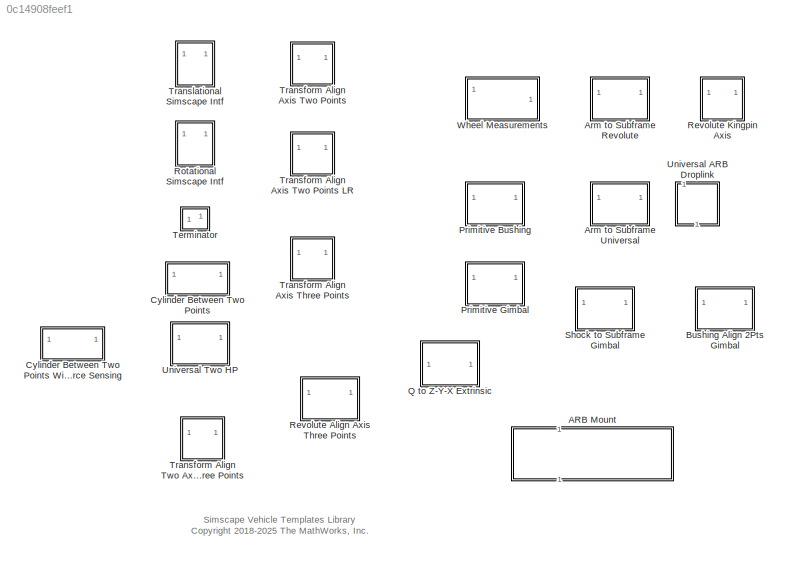
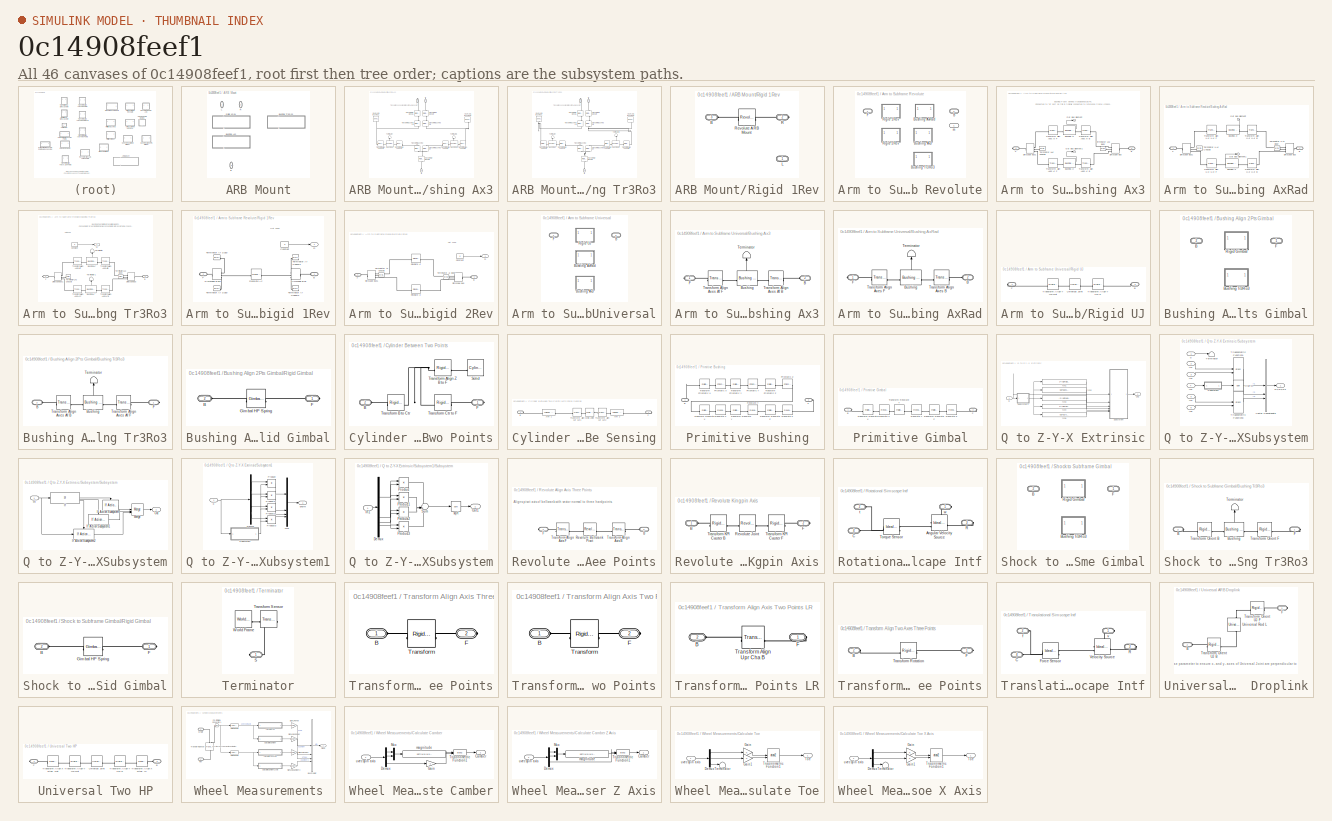
[diagram: thumbnail index - all 46 canvases of the model, root first then tree order]
MODEL slx_0c14908feef1
KIND library
CONFIG AbsTol = auto
CONFIG EnableMultiTasking = off
CONFIG FixedStep = auto
CONFIG MaxStep = auto
CONFIG MinStep = auto
CONFIG RelTol = 1e-3
CONFIG SampleTimeConstraint = Unconstrained
CONFIG SolverName = VariableStepAuto
CONFIG StartTime = 0.0
CONFIG StopTime = 10.0
BLOCK [SubSystem] ARB Mount
  AttributesFormatString = %<LabelModeActiveChoice>
  LabelModeActiveChoice = Rigid_1Rev
  NameLocation = left
  Variant = on
  VariantControl = Choice
  VariantControlMode = label
BLOCK [PMIOPort] ARB Mount/B
  NameLocation = right
  Port = 3
  Side = Left
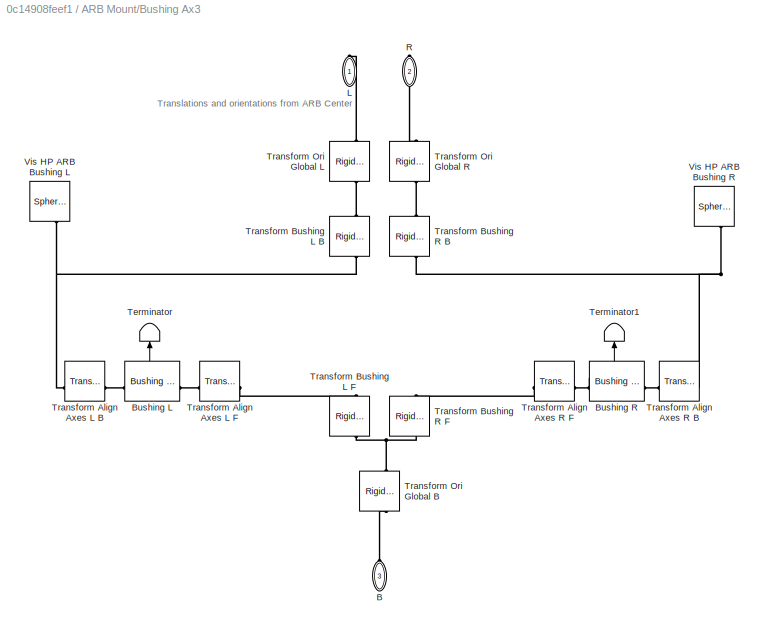
BLOCK [SubSystem] ARB Mount/Bushing Ax3
  NameLocation = right
  VariantControl = Bushing_Ax3
BLOCK [PMIOPort] ARB Mount/Bushing Ax3/B
  NameLocation = right
  Port = 3
  Side = Left
BLOCK [Reference] ARB Mount/Bushing Ax3/Bushing L  REF=linkage_bushing_6DOF_lib/Bushing
Tra 3
  SourceBlock = linkage_bushing_6DOF_lib/Bushing\nTra 3
  SourceType = Bushing with Radial and Axial Compliance
BLOCK [Reference] ARB Mount/Bushing Ax3/Bushing R  REF=linkage_bushing_6DOF_lib/Bushing
Tra 3
  SourceBlock = linkage_bushing_6DOF_lib/Bushing\nTra 3
  SourceType = Bushing with Radial and Axial Compliance
BLOCK [PMIOPort] ARB Mount/Bushing Ax3/L
  NameLocation = left
  Side = Right
BLOCK [PMIOPort] ARB Mount/Bushing Ax3/R
  NameLocation = right
  Port = 2
  Side = Right
BLOCK [Terminator] ARB Mount/Bushing Ax3/Terminator
  NameLocation = right
BLOCK [Terminator] ARB Mount/Bushing Ax3/Terminator1
  NameLocation = right
BLOCK [Reference] ARB Mount/Bushing Ax3/Transform Align Axes L B  REF=$bdroot/Transform
Align Two Axes Three Points
  SourceBlock = $bdroot/Transform\nAlign Two Axes Three Points
  SourceType = Transform Align Two Axes Three Points
BLOCK [Reference] ARB Mount/Bushing Ax3/Transform Align Axes L F  REF=$bdroot/Transform
Align Two Axes Three Points
  SourceBlock = $bdroot/Transform\nAlign Two Axes Three Points
  SourceType = Transform Align Two Axes Three Points
BLOCK [Reference] ARB Mount/Bushing Ax3/Transform Align Axes R B  REF=$bdroot/Transform
Align Two Axes Three Points
  SourceBlock = $bdroot/Transform\nAlign Two Axes Three Points
  SourceType = Transform Align Two Axes Three Points
BLOCK [Reference] ARB Mount/Bushing Ax3/Transform Align Axes R F  REF=$bdroot/Transform
Align Two Axes Three Points
  SourceBlock = $bdroot/Transform\nAlign Two Axes Three Points
  SourceType = Transform Align Two Axes Three Points
BLOCK [Reference] ARB Mount/Bushing Ax3/Transform Bushing L B  REF=sm_lib/Frames and
Transforms/Rigid
Transform
  NameLocation = left
  SourceBlock = sm_lib/Frames and\nTransforms/Rigid\nTransform
  SourceType = Rigid\nTransform
BLOCK [Reference] ARB Mount/Bushing Ax3/Transform Bushing L F  REF=sm_lib/Frames and
Transforms/Rigid
Transform
  NameLocation = left
  SourceBlock = sm_lib/Frames and\nTransforms/Rigid\nTransform
  SourceType = Rigid\nTransform
BLOCK [Reference] ARB Mount/Bushing Ax3/Transform Bushing R B  REF=sm_lib/Frames and
Transforms/Rigid
Transform
  NameLocation = right
  SourceBlock = sm_lib/Frames and\nTransforms/Rigid\nTransform
  SourceType = Rigid\nTransform
BLOCK [Reference] ARB Mount/Bushing Ax3/Transform Bushing R F  REF=sm_lib/Frames and
Transforms/Rigid
Transform
  NameLocation = right
  SourceBlock = sm_lib/Frames and\nTransforms/Rigid\nTransform
  SourceType = Rigid\nTransform
BLOCK [Reference] ARB Mount/Bushing Ax3/Transform Ori Global B  REF=sm_lib/Frames and
Transforms/Rigid
Transform
  SourceBlock = sm_lib/Frames and\nTransforms/Rigid\nTransform
  SourceType = Rigid\nTransform
BLOCK [Reference] ARB Mount/Bushing Ax3/Transform Ori Global L  REF=sm_lib/Frames and
Transforms/Rigid
Transform
  NameLocation = left
  SourceBlock = sm_lib/Frames and\nTransforms/Rigid\nTransform
  SourceType = Rigid\nTransform
BLOCK [Reference] ARB Mount/Bushing Ax3/Transform Ori Global R  REF=sm_lib/Frames and
Transforms/Rigid
Transform
  NameLocation = right
  SourceBlock = sm_lib/Frames and\nTransforms/Rigid\nTransform
  SourceType = Rigid\nTransform
BLOCK [Reference] ARB Mount/Bushing Ax3/Vis HP ARB Bushing L  REF=sm_lib/Body Elements/Spherical Solid
  NameLocation = right
  SourceBlock = sm_lib/Body Elements/Spherical Solid
  SourceType = Spherical Solid
BLOCK [Reference] ARB Mount/Bushing Ax3/Vis HP ARB Bushing R  REF=sm_lib/Body Elements/Spherical Solid
  NameLocation = left
  SourceBlock = sm_lib/Body Elements/Spherical Solid
  SourceType = Spherical Solid
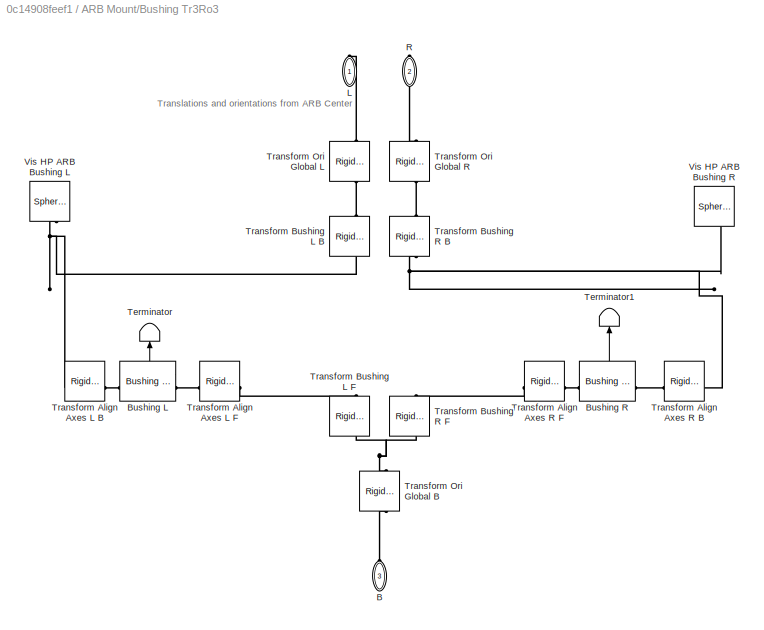
BLOCK [SubSystem] ARB Mount/Bushing Tr3Ro3
  NameLocation = right
  VariantControl = Bushing_Tr3Ro3
BLOCK [PMIOPort] ARB Mount/Bushing Tr3Ro3/B
  NameLocation = right
  Port = 3
  Side = Left
BLOCK [Reference] ARB Mount/Bushing Tr3Ro3/Bushing L  REF=linkage_bushing_6DOF_lib/Bushing
Tra 3 Rot 3
  SourceBlock = linkage_bushing_6DOF_lib/Bushing\nTra 3 Rot 3
  SourceType = Bushing with Axial  and Torsional Compliance
BLOCK [Reference] ARB Mount/Bushing Tr3Ro3/Bushing R  REF=linkage_bushing_6DOF_lib/Bushing
Tra 3 Rot 3
  SourceBlock = linkage_bushing_6DOF_lib/Bushing\nTra 3 Rot 3
  SourceType = Bushing with Axial  and Torsional Compliance
BLOCK [PMIOPort] ARB Mount/Bushing Tr3Ro3/L
  NameLocation = left
  Side = Right
BLOCK [PMIOPort] ARB Mount/Bushing Tr3Ro3/R
  NameLocation = right
  Port = 2
  Side = Right
BLOCK [Terminator] ARB Mount/Bushing Tr3Ro3/Terminator
  NameLocation = right
BLOCK [Terminator] ARB Mount/Bushing Tr3Ro3/Terminator1
  NameLocation = right
BLOCK [Reference] ARB Mount/Bushing Tr3Ro3/Transform Align Axes L B  REF=sm_lib/Frames and
Transforms/Rigid
Transform
  NameLocation = top
  SourceBlock = sm_lib/Frames and\nTransforms/Rigid\nTransform
  SourceType = Rigid\nTransform
BLOCK [Reference] ARB Mount/Bushing Tr3Ro3/Transform Align Axes L F  REF=sm_lib/Frames and
Transforms/Rigid
Transform
  NameLocation = top
  SourceBlock = sm_lib/Frames and\nTransforms/Rigid\nTransform
  SourceType = Rigid\nTransform
BLOCK [Reference] ARB Mount/Bushing Tr3Ro3/Transform Align Axes R B  REF=sm_lib/Frames and
Transforms/Rigid
Transform
  NameLocation = top
  SourceBlock = sm_lib/Frames and\nTransforms/Rigid\nTransform
  SourceType = Rigid\nTransform
BLOCK [Reference] ARB Mount/Bushing Tr3Ro3/Transform Align Axes R F  REF=sm_lib/Frames and
Transforms/Rigid
Transform
  NameLocation = top
  SourceBlock = sm_lib/Frames and\nTransforms/Rigid\nTransform
  SourceType = Rigid\nTransform
BLOCK [Reference] ARB Mount/Bushing Tr3Ro3/Transform Bushing L B  REF=sm_lib/Frames and
Transforms/Rigid
Transform
  NameLocation = left
  SourceBlock = sm_lib/Frames and\nTransforms/Rigid\nTransform
  SourceType = Rigid\nTransform
BLOCK [Reference] ARB Mount/Bushing Tr3Ro3/Transform Bushing L F  REF=sm_lib/Frames and
Transforms/Rigid
Transform
  NameLocation = left
  SourceBlock = sm_lib/Frames and\nTransforms/Rigid\nTransform
  SourceType = Rigid\nTransform
BLOCK [Reference] ARB Mount/Bushing Tr3Ro3/Transform Bushing R B  REF=sm_lib/Frames and
Transforms/Rigid
Transform
  NameLocation = right
  SourceBlock = sm_lib/Frames and\nTransforms/Rigid\nTransform
  SourceType = Rigid\nTransform
BLOCK [Reference] ARB Mount/Bushing Tr3Ro3/Transform Bushing R F  REF=sm_lib/Frames and
Transforms/Rigid
Transform
  NameLocation = right
  SourceBlock = sm_lib/Frames and\nTransforms/Rigid\nTransform
  SourceType = Rigid\nTransform
BLOCK [Reference] ARB Mount/Bushing Tr3Ro3/Transform Ori Global B  REF=sm_lib/Frames and
Transforms/Rigid
Transform
  SourceBlock = sm_lib/Frames and\nTransforms/Rigid\nTransform
  SourceType = Rigid\nTransform
BLOCK [Reference] ARB Mount/Bushing Tr3Ro3/Transform Ori Global L  REF=sm_lib/Frames and
Transforms/Rigid
Transform
  NameLocation = left
  SourceBlock = sm_lib/Frames and\nTransforms/Rigid\nTransform
  SourceType = Rigid\nTransform
BLOCK [Reference] ARB Mount/Bushing Tr3Ro3/Transform Ori Global R  REF=sm_lib/Frames and
Transforms/Rigid
Transform
  NameLocation = right
  SourceBlock = sm_lib/Frames and\nTransforms/Rigid\nTransform
  SourceType = Rigid\nTransform
BLOCK [Reference] ARB Mount/Bushing Tr3Ro3/Vis HP ARB Bushing L  REF=sm_lib/Body Elements/Spherical Solid
  NameLocation = right
  SourceBlock = sm_lib/Body Elements/Spherical Solid
  SourceType = Spherical Solid
BLOCK [Reference] ARB Mount/Bushing Tr3Ro3/Vis HP ARB Bushing R  REF=sm_lib/Body Elements/Spherical Solid
  NameLocation = left
  SourceBlock = sm_lib/Body Elements/Spherical Solid
  SourceType = Spherical Solid
BLOCK [PMIOPort] ARB Mount/L
  NameLocation = right
  Side = Right
BLOCK [PMIOPort] ARB Mount/R
  NameLocation = right
  Port = 2
  Side = Right
BLOCK [SubSystem] ARB Mount/Rigid 1Rev
  NameLocation = right
  VariantControl = Rigid_1Rev
BLOCK [PMIOPort] ARB Mount/Rigid 1Rev/B
  Port = 3
  Side = Left
BLOCK [PMIOPort] ARB Mount/Rigid 1Rev/L
  Side = Right
BLOCK [PMIOPort] ARB Mount/Rigid 1Rev/R
  Port = 2
  Side = Right
BLOCK [Reference] ARB Mount/Rigid 1Rev/Revolute ARB Mount  REF=sm_lib/Joints/Revolute Joint
  SourceBlock = sm_lib/Joints/Revolute Joint
  SourceType = Revolute Joint
BLOCK [SubSystem] Arm to Subframe Revolute
  AttributesFormatString = %<ActiveVariant>
  Variant = on
  VariantActivationTime = runtime
  VariantControl = Variant1
BLOCK [PMIOPort] Arm to Subframe Revolute/ B
  Port = 2
  Side = Left
BLOCK [SubSystem] Arm to Subframe Revolute/Bushing Ax3
  VariantControl = Bushing_Ax3
BLOCK [PMIOPort] Arm to Subframe Revolute/Bushing Ax3/ B
  Port = 2
  Side = Left
BLOCK [Reference] Arm to Subframe Revolute/Bushing Ax3/Bushing Af  REF=linkage_bushing_6DOF_lib/Bushing
Tra 3
  SourceBlock = linkage_bushing_6DOF_lib/Bushing\nTra 3
  SourceType = Bushing with Radial and Axial Compliance
BLOCK [Reference] Arm to Subframe Revolute/Bushing Ax3/Bushing Ar  REF=linkage_bushing_6DOF_lib/Bushing
Tra 3
  SourceBlock = linkage_bushing_6DOF_lib/Bushing\nTra 3
  SourceType = Bushing with Radial and Axial Compliance
BLOCK [PMIOPort] Arm to Subframe Revolute/Bushing Ax3/F
  Side = Right
BLOCK [Outport] Arm to Subframe Revolute/Bushing Ax3/Out Bus Element
BLOCK [Outport] Arm to Subframe Revolute/Bushing Ax3/Out Bus Element1
BLOCK [SimscapeBus] Arm to Subframe Revolute/Bushing Ax3/Simscape Bus
  HierarchyStrings = Af;Ac;Ar
BLOCK [SimscapeBus] Arm to Subframe Revolute/Bushing Ax3/Simscape Bus1
  HierarchyStrings = Af;Ac;Ar
BLOCK [Reference] Arm to Subframe Revolute/Bushing Ax3/Terminator UAc Body  REF=$bdroot/Terminator
  SourceBlock = $bdroot/Terminator
  SourceType = SubSystem
BLOCK [Reference] Arm to Subframe Revolute/Bushing Ax3/Terminator UAc Chassis  REF=$bdroot/Terminator
  SourceBlock = $bdroot/Terminator
  SourceType = SubSystem
BLOCK [Reference] Arm to Subframe Revolute/Bushing Ax3/Transform Align Axes Af B  REF=$bdroot/Transform
Align Two Axes Three Points
  SourceBlock = $bdroot/Transform\nAlign Two Axes Three Points
  SourceType = Transform Align Two Axes Three Points
BLOCK [Reference] Arm to Subframe Revolute/Bushing Ax3/Transform Align Axes Af F  REF=$bdroot/Transform
Align Two Axes Three Points
  SourceBlock = $bdroot/Transform\nAlign Two Axes Three Points
  SourceType = Transform Align Two Axes Three Points
BLOCK [Reference] Arm to Subframe Revolute/Bushing Ax3/Transform Align Axes Ar B  REF=$bdroot/Transform
Align Two Axes Three Points
  SourceBlock = $bdroot/Transform\nAlign Two Axes Three Points
  SourceType = Transform Align Two Axes Three Points
BLOCK [Reference] Arm to Subframe Revolute/Bushing Ax3/Transform Align Axes Ar F  REF=$bdroot/Transform
Align Two Axes Three Points
  SourceBlock = $bdroot/Transform\nAlign Two Axes Three Points
  SourceType = Transform Align Two Axes Three Points
BLOCK [SubSystem] Arm to Subframe Revolute/Bushing AxRad
  VariantControl = Bushing_AxRad
BLOCK [PMIOPort] Arm to Subframe Revolute/Bushing AxRad/ B
  Port = 2
  Side = Left
BLOCK [Reference] Arm to Subframe Revolute/Bushing AxRad/Bushing Af  REF=linkage_bushing_6DOF_lib/Bushing
Radial Axial
  AttributesFormatString = SPR: %<popup_force_law_spr_rad>\nDAM: %<popup_force_law_dam_rad>
  SourceBlock = linkage_bushing_6DOF_lib/Bushing\nRadial Axial
  SourceType = Bushing with Radial and Axial Compliance
BLOCK [Reference] Arm to Subframe Revolute/Bushing AxRad/Bushing Ar  REF=linkage_bushing_6DOF_lib/Bushing
Radial Axial
  SourceBlock = linkage_bushing_6DOF_lib/Bushing\nRadial Axial
  SourceType = Bushing with Radial and Axial Compliance
BLOCK [PMIOPort] Arm to Subframe Revolute/Bushing AxRad/F
  Side = Right
BLOCK [Outport] Arm to Subframe Revolute/Bushing AxRad/Out Bus Element
BLOCK [Outport] Arm to Subframe Revolute/Bushing AxRad/Out Bus Element1
BLOCK [SimscapeBus] Arm to Subframe Revolute/Bushing AxRad/Simscape Bus
  HierarchyStrings = Af;Ac;Ar
BLOCK [SimscapeBus] Arm to Subframe Revolute/Bushing AxRad/Simscape Bus1
  HierarchyStrings = Af;Ac;Ar
BLOCK [Reference] Arm to Subframe Revolute/Bushing AxRad/Terminator UAc Body  REF=$bdroot/Terminator
  SourceBlock = $bdroot/Terminator
  SourceType = SubSystem
BLOCK [Reference] Arm to Subframe Revolute/Bushing AxRad/Terminator UAc Chassis  REF=$bdroot/Terminator
  SourceBlock = $bdroot/Terminator
  SourceType = SubSystem
BLOCK [Reference] Arm to Subframe Revolute/Bushing AxRad/Transform Align UAf UAr B  REF=$bdroot/Transform
Align Axis Two Points
  SourceBlock = $bdroot/Transform\nAlign Axis Two Points
  SourceType = Transform Align Axis Two Points
BLOCK [Reference] Arm to Subframe Revolute/Bushing AxRad/Transform Align UAf UAr F  REF=$bdroot/Transform
Align Axis Two Points
  SourceBlock = $bdroot/Transform\nAlign Axis Two Points
  SourceType = Transform Align Axis Two Points
BLOCK [Reference] Arm to Subframe Revolute/Bushing AxRad/Transform Align UAr UAf B  REF=$bdroot/Transform
Align Axis Two Points
  SourceBlock = $bdroot/Transform\nAlign Axis Two Points
  SourceType = Transform Align Axis Two Points
BLOCK [Reference] Arm to Subframe Revolute/Bushing AxRad/Transform Align UAr UAf F  REF=$bdroot/Transform
Align Axis Two Points
  SourceBlock = $bdroot/Transform\nAlign Axis Two Points
  SourceType = Transform Align Axis Two Points
BLOCK [SubSystem] Arm to Subframe Revolute/Bushing Tr3Ro3
  VariantControl = Bushing_Tr3Ro3
BLOCK [PMIOPort] Arm to Subframe Revolute/Bushing Tr3Ro3/ B
  Port = 2
  Side = Left
BLOCK [Reference] Arm to Subframe Revolute/Bushing Tr3Ro3/Bushing Af  REF=linkage_bushing_6DOF_lib/Bushing
Tra 3 Rot 3
  SourceBlock = linkage_bushing_6DOF_lib/Bushing\nTra 3 Rot 3
  SourceType = Bushing with Axial  and Torsional Compliance
BLOCK [Reference] Arm to Subframe Revolute/Bushing Tr3Ro3/Bushing Ar  REF=linkage_bushing_6DOF_lib/Bushing
Tra 3 Rot 3
  SourceBlock = linkage_bushing_6DOF_lib/Bushing\nTra 3 Rot 3
  SourceType = Bushing with Axial  and Torsional Compliance
BLOCK [Constant] Arm to Subframe Revolute/Bushing Tr3Ro3/Constant
  Value = 0
BLOCK [PMIOPort] Arm to Subframe Revolute/Bushing Tr3Ro3/F
  Side = Right
BLOCK [SimscapeBus] Arm to Subframe Revolute/Bushing Tr3Ro3/Simscape Bus
  HierarchyStrings = Af;Ac;Ar
BLOCK [SimscapeBus] Arm to Subframe Revolute/Bushing Tr3Ro3/Simscape Bus1
  HierarchyStrings = Af;Ac;Ar
BLOCK [Terminator] Arm to Subframe Revolute/Bushing Tr3Ro3/Terminator
  NameLocation = right
BLOCK [Reference] Arm to Subframe Revolute/Bushing Tr3Ro3/Terminator UAc Body  REF=$bdroot/Terminator
  SourceBlock = $bdroot/Terminator
  SourceType = SubSystem
BLOCK [Reference] Arm to Subframe Revolute/Bushing Tr3Ro3/Terminator UAc Chassis  REF=$bdroot/Terminator
  SourceBlock = $bdroot/Terminator
  SourceType = SubSystem
BLOCK [Terminator] Arm to Subframe Revolute/Bushing Tr3Ro3/Terminator1
  NameLocation = right
BLOCK [Reference] Arm to Subframe Revolute/Bushing Tr3Ro3/Transform Align Axes Af B  REF=$bdroot/Transform
Align Two Axes Three Points
  SourceBlock = $bdroot/Transform\nAlign Two Axes Three Points
  SourceType = Transform Align Two Axes Three Points
BLOCK [Reference] Arm to Subframe Revolute/Bushing Tr3Ro3/Transform Align Axes Af F  REF=$bdroot/Transform
Align Two Axes Three Points
  SourceBlock = $bdroot/Transform\nAlign Two Axes Three Points
  SourceType = Transform Align Two Axes Three Points
BLOCK [Reference] Arm to Subframe Revolute/Bushing Tr3Ro3/Transform Align Axes Ar B  REF=$bdroot/Transform
Align Two Axes Three Points
  SourceBlock = $bdroot/Transform\nAlign Two Axes Three Points
  SourceType = Transform Align Two Axes Three Points
BLOCK [Reference] Arm to Subframe Revolute/Bushing Tr3Ro3/Transform Align Axes Ar F  REF=$bdroot/Transform
Align Two Axes Three Points
  SourceBlock = $bdroot/Transform\nAlign Two Axes Three Points
  SourceType = Transform Align Two Axes Three Points
BLOCK [Outport] Arm to Subframe Revolute/Bushing Tr3Ro3/m
BLOCK [PMIOPort] Arm to Subframe Revolute/F
  Side = Right
BLOCK [SubSystem] Arm to Subframe Revolute/Rigid 1Rev
  VariantControl = Rigid_1Rev
BLOCK [PMIOPort] Arm to Subframe Revolute/Rigid 1Rev/ B
  Side = Left
BLOCK [Constant] Arm to Subframe Revolute/Rigid 1Rev/Constant
  Value = 0
BLOCK [PMIOPort] Arm to Subframe Revolute/Rigid 1Rev/F
  Port = 2
  Side = Right
BLOCK [Reference] Arm to Subframe Revolute/Rigid 1Rev/Revolute Ac  REF=sm_lib/Joints/Revolute Joint
  SourceBlock = sm_lib/Joints/Revolute Joint
  SourceType = Revolute Joint
BLOCK [SimscapeBus] Arm to Subframe Revolute/Rigid 1Rev/Simscape Bus
  HierarchyStrings = Af;Ac;Ar
BLOCK [SimscapeBus] Arm to Subframe Revolute/Rigid 1Rev/Simscape Bus1
  HierarchyStrings = Af;Ac;Ar
BLOCK [Reference] Arm to Subframe Revolute/Rigid 1Rev/Terminator Af Chassis  REF=$bdroot/Terminator
  SourceBlock = $bdroot/Terminator
  SourceType = SubSystem
BLOCK [Reference] Arm to Subframe Revolute/Rigid 1Rev/Terminator Af Susp  REF=$bdroot/Terminator
  SourceBlock = $bdroot/Terminator
  SourceType = SubSystem
BLOCK [Reference] Arm to Subframe Revolute/Rigid 1Rev/Terminator Ar Chassis  REF=$bdroot/Terminator
  SourceBlock = $bdroot/Terminator
  SourceType = SubSystem
BLOCK [Reference] Arm to Subframe Revolute/Rigid 1Rev/Terminator Ar Susp  REF=$bdroot/Terminator
  SourceBlock = $bdroot/Terminator
  SourceType = SubSystem
BLOCK [Outport] Arm to Subframe Revolute/Rigid 1Rev/m
BLOCK [SubSystem] Arm to Subframe Revolute/Rigid 2Rev
  VariantControl = Rigid_2Rev
BLOCK [PMIOPort] Arm to Subframe Revolute/Rigid 2Rev/ B
  Side = Left
BLOCK [Constant] Arm to Subframe Revolute/Rigid 2Rev/Constant
  Value = 0
BLOCK [PMIOPort] Arm to Subframe Revolute/Rigid 2Rev/F
  Port = 2
  Side = Right
BLOCK [Reference] Arm to Subframe Revolute/Rigid 2Rev/Revolute Af  REF=sm_lib/Joints/Revolute Joint
  SourceBlock = sm_lib/Joints/Revolute Joint
  SourceType = Revolute Joint
BLOCK [Reference] Arm to Subframe Revolute/Rigid 2Rev/Revolute Ar  REF=sm_lib/Joints/Revolute Joint
  SourceBlock = sm_lib/Joints/Revolute Joint
  SourceType = Revolute Joint
BLOCK [SimscapeBus] Arm to Subframe Revolute/Rigid 2Rev/Simscape Bus
  HierarchyStrings = Af;Ac;Ar
BLOCK [SimscapeBus] Arm to Subframe Revolute/Rigid 2Rev/Simscape Bus1
  HierarchyStrings = Af;Ac;Ar
BLOCK [Reference] Arm to Subframe Revolute/Rigid 2Rev/Terminator Ac Body  REF=$bdroot/Terminator
  SourceBlock = $bdroot/Terminator
  SourceType = SubSystem
BLOCK [Reference] Arm to Subframe Revolute/Rigid 2Rev/Terminator Ac Chassis  REF=$bdroot/Terminator
  SourceBlock = $bdroot/Terminator
  SourceType = SubSystem
BLOCK [Outport] Arm to Subframe Revolute/Rigid 2Rev/m
BLOCK [Outport] Arm to Subframe Revolute/m
BLOCK [SubSystem] Arm to Subframe Universal
  AttributesFormatString = %<ActiveVariant>
  LabelModeActiveChoice = Bushing_AxRad
  Variant = on
  VariantControl = Variant1
  VariantControlMode = label
BLOCK [PMIOPort] Arm to Subframe Universal/ B
  Port = 2
  Side = Left
BLOCK [SubSystem] Arm to Subframe Universal/Bushing Ax3
  VariantControl = Bushing_Ax3
BLOCK [PMIOPort] Arm to Subframe Universal/Bushing Ax3/ B
  Port = 2
  Side = Left
BLOCK [Reference] Arm to Subframe Universal/Bushing Ax3/Bushing  REF=linkage_bushing_5DOF_lib/Bushing
Tra 3
  SourceBlock = linkage_bushing_5DOF_lib/Bushing\nTra 3
  SourceType = Bushing with Independent Axial Compliance on 3 Axes (5 DOF)
BLOCK [PMIOPort] Arm to Subframe Universal/Bushing Ax3/F
  Side = Right
BLOCK [Terminator] Arm to Subframe Universal/Bushing Ax3/Terminator
  NameLocation = right
BLOCK [Reference] Arm to Subframe Universal/Bushing Ax3/Transform Align Axes Af B  REF=$bdroot/Transform
Align Two Axes Three Points
  SourceBlock = $bdroot/Transform\nAlign Two Axes Three Points
  SourceType = Transform Align Two Axes Three Points
BLOCK [Reference] Arm to Subframe Universal/Bushing Ax3/Transform Align Axes Af F  REF=$bdroot/Transform
Align Two Axes Three Points
  SourceBlock = $bdroot/Transform\nAlign Two Axes Three Points
  SourceType = Transform Align Two Axes Three Points
BLOCK [SubSystem] Arm to Subframe Universal/Bushing AxRad
  VariantControl = Bushing_AxRad
BLOCK [PMIOPort] Arm to Subframe Universal/Bushing AxRad/ B
  Port = 2
  Side = Left
BLOCK [Reference] Arm to Subframe Universal/Bushing AxRad/Bushing  REF=linkage_bushing_5DOF_lib/Bushing
Radial Axial
  AttributesFormatString = SPR: %<popup_force_law_spr_rad>\nDAM: %<popup_force_law_dam_rad>
  SourceBlock = linkage_bushing_5DOF_lib/Bushing\nRadial Axial
  SourceType = Bushing with Radial and Axial Compliance
BLOCK [PMIOPort] Arm to Subframe Universal/Bushing AxRad/F
  Side = Right
BLOCK [Terminator] Arm to Subframe Universal/Bushing AxRad/Terminator
  NameLocation = right
BLOCK [Reference] Arm to Subframe Universal/Bushing AxRad/Transform Align Axes B  REF=$bdroot/Transform
Align Axis Two Points
  SourceBlock = $bdroot/Transform\nAlign Axis Two Points
  SourceType = Transform Align Axis Two Points
BLOCK [Reference] Arm to Subframe Universal/Bushing AxRad/Transform Align Axes F  REF=$bdroot/Transform
Align Axis Two Points
  SourceBlock = $bdroot/Transform\nAlign Axis Two Points
  SourceType = Transform Align Axis Two Points
BLOCK [PMIOPort] Arm to Subframe Universal/F
  Side = Right
BLOCK [SubSystem] Arm to Subframe Universal/Rigid UJ
  VariantControl = Rigid_UJ
BLOCK [PMIOPort] Arm to Subframe Universal/Rigid UJ/B
  Port = 2
  Side = Left
BLOCK [PMIOPort] Arm to Subframe Universal/Rigid UJ/F
  Side = Right
BLOCK [Reference] Arm to Subframe Universal/Rigid UJ/Transform Align Y Up In  REF=sm_lib/Frames and
Transforms/Rigid
Transform
  SourceBlock = sm_lib/Frames and\nTransforms/Rigid\nTransform
  SourceType = Rigid\nTransform
BLOCK [Reference] Arm to Subframe Universal/Rigid UJ/Transform Align Y Up Out  REF=sm_lib/Frames and
Transforms/Rigid
Transform
  SourceBlock = sm_lib/Frames and\nTransforms/Rigid\nTransform
  SourceType = Rigid\nTransform
BLOCK [Reference] Arm to Subframe Universal/Rigid UJ/Universal Joint   REF=sm_lib/Joints/Universal
Joint
  SourceBlock = sm_lib/Joints/Universal\nJoint
  SourceType = Universal\nJoint
BLOCK [SubSystem] Bushing Align 2Pts Gimbal
  AttributesFormatString = %<ActiveVariant>
  LabelModeActiveChoice = Bushing_Tr3Ro3
  Variant = on
  VariantControl = Variant1
  VariantControlMode = label
BLOCK [PMIOPort] Bushing Align 2Pts Gimbal/ B
  Port = 2
  Side = Left
BLOCK [SubSystem] Bushing Align 2Pts Gimbal/Bushing Tr3Ro3
  VariantControl = Bushing_Tr3Ro3
BLOCK [PMIOPort] Bushing Align 2Pts Gimbal/Bushing Tr3Ro3/ B
  Port = 2
  Side = Left
BLOCK [Reference] Bushing Align 2Pts Gimbal/Bushing Tr3Ro3/Bushing  REF=linkage_bushing_6DOF_lib/Bushing
Tra 3 Rot 3
  SourceBlock = linkage_bushing_6DOF_lib/Bushing\nTra 3 Rot 3
  SourceType = Bushing with Axial  and Torsional Compliance
BLOCK [PMIOPort] Bushing Align 2Pts Gimbal/Bushing Tr3Ro3/F
  Side = Right
BLOCK [Terminator] Bushing Align 2Pts Gimbal/Bushing Tr3Ro3/Terminator
  NameLocation = right
BLOCK [Reference] Bushing Align 2Pts Gimbal/Bushing Tr3Ro3/Transform Align Axes Af B  REF=$bdroot/Transform
Align Two Axes Three Points
  SourceBlock = $bdroot/Transform\nAlign Two Axes Three Points
  SourceType = Transform Align Two Axes Three Points
BLOCK [Reference] Bushing Align 2Pts Gimbal/Bushing Tr3Ro3/Transform Align Axes Af F  REF=$bdroot/Transform
Align Two Axes Three Points
  SourceBlock = $bdroot/Transform\nAlign Two Axes Three Points
  SourceType = Transform Align Two Axes Three Points
BLOCK [PMIOPort] Bushing Align 2Pts Gimbal/F
  Side = Right
BLOCK [SubSystem] Bushing Align 2Pts Gimbal/Rigid Gimbal
  VariantControl = Rigid_Gimbal
BLOCK [PMIOPort] Bushing Align 2Pts Gimbal/Rigid Gimbal/B
  Port = 2
  Side = Left
BLOCK [PMIOPort] Bushing Align 2Pts Gimbal/Rigid Gimbal/F
  Side = Right
BLOCK [Reference] Bushing Align 2Pts Gimbal/Rigid Gimbal/Gimbal HP Spring  REF=sm_lib/Joints/Gimbal Joint
  SourceBlock = sm_lib/Joints/Gimbal Joint
  SourceType = Gimbal Joint
BLOCK [SubSystem] Cylinder Between Two Points
BLOCK [SubSystem] Cylinder Between Two Points With Force Sensing
BLOCK [Reference] Cylinder Between Two Points With Force Sensing/Arm 1  REF=$bdroot/Cylinder Between
Two Points
  SourceBlock = $bdroot/Cylinder Between\nTwo Points
  SourceType = Cylinder between two points
BLOCK [Reference] Cylinder Between Two Points With Force Sensing/Arm 2  REF=$bdroot/Cylinder Between
Two Points
  SourceBlock = $bdroot/Cylinder Between\nTwo Points
  SourceType = Cylinder between two points
BLOCK [PMIOPort] Cylinder Between Two Points With Force Sensing/B
  Port = 2
  Side = Left
BLOCK [PMIOPort] Cylinder Between Two Points With Force Sensing/F
  Side = Right
BLOCK [Reference] Cylinder Between Two Points With Force Sensing/Transform Align UAf UAr1  REF=$bdroot/Transform
Align Axis Two Points
  SourceBlock = $bdroot/Transform\nAlign Axis Two Points
  SourceType = Transform Align Axis Two Points
BLOCK [Reference] Cylinder Between Two Points With Force Sensing/Transform Align UAf UAr2  REF=$bdroot/Transform
Align Axis Two Points
  SourceBlock = $bdroot/Transform\nAlign Axis Two Points
  SourceType = Transform Align Axis Two Points
BLOCK [Reference] Cylinder Between Two Points With Force Sensing/Weld Joint  REF=sm_lib/Joints/Weld Joint
  SourceBlock = sm_lib/Joints/Weld Joint
  SourceType = Weld Joint
BLOCK [PMIOPort] Cylinder Between Two Points/B
  Port = 2
  Side = Left
BLOCK [PMIOPort] Cylinder Between Two Points/F
  Side = Right
BLOCK [Reference] Cylinder Between Two Points/Solid  REF=sm_lib/Body Elements/Cylindrical Solid
  SourceBlock = sm_lib/Body Elements/Cylindrical Solid
  SourceType = Cylindrical Solid
BLOCK [Reference] Cylinder Between Two Points/Transform Align Z B to F  REF=sm_lib/Frames and
Transforms/Rigid
Transform
  SourceBlock = sm_lib/Frames and\nTransforms/Rigid\nTransform
  SourceType = Rigid\nTransform
BLOCK [Reference] Cylinder Between Two Points/Transform B to Ctr  REF=sm_lib/Frames and
Transforms/Rigid
Transform
  SourceBlock = sm_lib/Frames and\nTransforms/Rigid\nTransform
  SourceType = Rigid\nTransform
BLOCK [Reference] Cylinder Between Two Points/Transform Ctr to F  REF=sm_lib/Frames and
Transforms/Rigid
Transform
  SourceBlock = sm_lib/Frames and\nTransforms/Rigid\nTransform
  SourceType = Rigid\nTransform
BLOCK [SubSystem] Primitive Bushing
BLOCK [PMIOPort] Primitive Bushing/B
  Side = Left
BLOCK [PMIOPort] Primitive Bushing/F
  Port = 2
  Side = Right
BLOCK [Reference] Primitive Bushing/Prismatic X  REF=sm_lib/Joints/Prismatic
Joint
  SourceBlock = sm_lib/Joints/Prismatic\nJoint
  SourceType = Prismatic\nJoint
BLOCK [Reference] Primitive Bushing/Prismatic Y  REF=sm_lib/Joints/Prismatic
Joint
  SourceBlock = sm_lib/Joints/Prismatic\nJoint
  SourceType = Prismatic\nJoint
BLOCK [Reference] Primitive Bushing/Prismatic Z  REF=sm_lib/Joints/Prismatic
Joint
  SourceBlock = sm_lib/Joints/Prismatic\nJoint
  SourceType = Prismatic\nJoint
BLOCK [Reference] Primitive Bushing/Revolute X  REF=sm_lib/Joints/Revolute Joint
  SourceBlock = sm_lib/Joints/Revolute Joint
  SourceType = Revolute Joint
BLOCK [Reference] Primitive Bushing/Revolute Y  REF=sm_lib/Joints/Revolute Joint
  SourceBlock = sm_lib/Joints/Revolute Joint
  SourceType = Revolute Joint
BLOCK [Reference] Primitive Bushing/Revolute Z  REF=sm_lib/Joints/Revolute Joint
  SourceBlock = sm_lib/Joints/Revolute Joint
  SourceType = Revolute Joint
BLOCK [Reference] Primitive Bushing/Transform Prismatic X  REF=sm_lib/Frames and
Transforms/Rigid
Transform
  SourceBlock = sm_lib/Frames and\nTransforms/Rigid\nTransform
  SourceType = Rigid\nTransform
BLOCK [Reference] Primitive Bushing/Transform Prismatic Y  REF=sm_lib/Frames and
Transforms/Rigid
Transform
  SourceBlock = sm_lib/Frames and\nTransforms/Rigid\nTransform
  SourceType = Rigid\nTransform
BLOCK [Reference] Primitive Bushing/Transform Prismatic Z  REF=sm_lib/Frames and
Transforms/Rigid
Transform
  SourceBlock = sm_lib/Frames and\nTransforms/Rigid\nTransform
  SourceType = Rigid\nTransform
BLOCK [Reference] Primitive Bushing/Transform Revolute X  REF=sm_lib/Frames and
Transforms/Rigid
Transform
  SourceBlock = sm_lib/Frames and\nTransforms/Rigid\nTransform
  SourceType = Rigid\nTransform
BLOCK [Reference] Primitive Bushing/Transform Revolute Y  REF=sm_lib/Frames and
Transforms/Rigid
Transform
  SourceBlock = sm_lib/Frames and\nTransforms/Rigid\nTransform
  SourceType = Rigid\nTransform
BLOCK [Reference] Primitive Bushing/Transform Revolute Z  REF=sm_lib/Frames and
Transforms/Rigid
Transform
  SourceBlock = sm_lib/Frames and\nTransforms/Rigid\nTransform
  SourceType = Rigid\nTransform
BLOCK [SubSystem] Primitive Gimbal
BLOCK [PMIOPort] Primitive Gimbal/B
  Side = Left
BLOCK [PMIOPort] Primitive Gimbal/F
  Port = 2
  Side = Right
BLOCK [Reference] Primitive Gimbal/Revolute X  REF=sm_lib/Joints/Revolute Joint
  SourceBlock = sm_lib/Joints/Revolute Joint
  SourceType = Revolute Joint
BLOCK [Reference] Primitive Gimbal/Revolute Y  REF=sm_lib/Joints/Revolute Joint
  SourceBlock = sm_lib/Joints/Revolute Joint
  SourceType = Revolute Joint
BLOCK [Reference] Primitive Gimbal/Revolute Z  REF=sm_lib/Joints/Revolute Joint
  SourceBlock = sm_lib/Joints/Revolute Joint
  SourceType = Revolute Joint
BLOCK [Reference] Primitive Gimbal/Transform Revolute X  REF=sm_lib/Frames and
Transforms/Rigid
Transform
  SourceBlock = sm_lib/Frames and\nTransforms/Rigid\nTransform
  SourceType = Rigid\nTransform
BLOCK [Reference] Primitive Gimbal/Transform Revolute Y  REF=sm_lib/Frames and
Transforms/Rigid
Transform
  SourceBlock = sm_lib/Frames and\nTransforms/Rigid\nTransform
  SourceType = Rigid\nTransform
BLOCK [Reference] Primitive Gimbal/Transform Revolute Z  REF=sm_lib/Frames and
Transforms/Rigid
Transform
  SourceBlock = sm_lib/Frames and\nTransforms/Rigid\nTransform
  SourceType = Rigid\nTransform
BLOCK [SubSystem] Q to Z-Y-X Extrinsic
BLOCK [Inport] Q to Z-Y-X Extrinsic/Q
BLOCK [SubSystem] Q to Z-Y-X Extrinsic/Subsystem
BLOCK [Inport] Q to Z-Y-X Extrinsic/Subsystem/In4
  Port = 5
BLOCK [Outport] Q to Z-Y-X Extrinsic/Subsystem/R1,R2,R3
  VectorParamsAs1DForOutWhenUnconnected = off
BLOCK [SubSystem] Q to Z-Y-X Extrinsic/Subsystem/Subsystem
BLOCK [If] Q to Z-Y-X Extrinsic/Subsystem/Subsystem/If
  ElseIfExpressions = u1 < -1
  IfExpression = u1 > 1
BLOCK [Reference] Q to Z-Y-X Extrinsic/Subsystem/Subsystem/If Action Subsystem  REF=sharedtransformsys/Protect asincos input/If Action
Subsystem
  SourceBlock = sharedtransformsys/Protect asincos input/If Action\nSubsystem
  SourceType = SubSystem
BLOCK [Reference] Q to Z-Y-X Extrinsic/Subsystem/Subsystem/If Action Subsystem1  REF=sharedtransformsys/Protect asincos input/If Action
Subsystem1
  SourceBlock = sharedtransformsys/Protect asincos input/If Action\nSubsystem1
  SourceType = SubSystem
BLOCK [Reference] Q to Z-Y-X Extrinsic/Subsystem/Subsystem/If Action Subsystem2  REF=sharedtransformsys/Protect asincos input/If Action
Subsystem2
  SourceBlock = sharedtransformsys/Protect asincos input/If Action\nSubsystem2
  SourceType = SubSystem
BLOCK [Inport] Q to Z-Y-X Extrinsic/Subsystem/Subsystem/In
BLOCK [Merge] Q to Z-Y-X Extrinsic/Subsystem/Subsystem/Merge
  Inputs = 3
BLOCK [Outport] Q to Z-Y-X Extrinsic/Subsystem/Subsystem/Out
  VectorParamsAs1DForOutWhenUnconnected = off
BLOCK [Terminator] Q to Z-Y-X Extrinsic/Subsystem/Terminator
BLOCK [Trigonometry] Q to Z-Y-X Extrinsic/Subsystem/Trigonometric Function1
  Operator = atan2
BLOCK [Trigonometry] Q to Z-Y-X Extrinsic/Subsystem/Trigonometric Function3
  Operator = atan2
BLOCK [Concatenate] Q to Z-Y-X Extrinsic/Subsystem/Vector Concatenate
  NumInputs = 3
BLOCK [Inport] Q to Z-Y-X Extrinsic/Subsystem/q
BLOCK [Inport] Q to Z-Y-X Extrinsic/Subsystem/r11
  Port = 2
BLOCK [Inport] Q to Z-Y-X Extrinsic/Subsystem/r12
  Port = 3
BLOCK [Inport] Q to Z-Y-X Extrinsic/Subsystem/r21
  Port = 4
BLOCK [Inport] Q to Z-Y-X Extrinsic/Subsystem/r32
  Port = 6
BLOCK [Trigonometry] Q to Z-Y-X Extrinsic/Subsystem/trigFcn
  Operator = asin
BLOCK [SubSystem] Q to Z-Y-X Extrinsic/Subsystem1
BLOCK [Demux] Q to Z-Y-X Extrinsic/Subsystem1/Demux
BLOCK [Mux] Q to Z-Y-X Extrinsic/Subsystem1/Mux
  DisplayOption = bar
BLOCK [Product] Q to Z-Y-X Extrinsic/Subsystem1/Product
  Inputs = */
BLOCK [Product] Q to Z-Y-X Extrinsic/Subsystem1/Product1
  Inputs = */
BLOCK [Product] Q to Z-Y-X Extrinsic/Subsystem1/Product2
  Inputs = */
BLOCK [Product] Q to Z-Y-X Extrinsic/Subsystem1/Product3
  Inputs = */
BLOCK [SubSystem] Q to Z-Y-X Extrinsic/Subsystem1/Subsystem
BLOCK [Demux] Q to Z-Y-X Extrinsic/Subsystem1/Subsystem/Demux
BLOCK [Inport] Q to Z-Y-X Extrinsic/Subsystem1/Subsystem/In1
BLOCK [Outport] Q to Z-Y-X Extrinsic/Subsystem1/Subsystem/Out1
  VectorParamsAs1DForOutWhenUnconnected = off
BLOCK [Product] Q to Z-Y-X Extrinsic/Subsystem1/Subsystem/Product
BLOCK [Product] Q to Z-Y-X Extrinsic/Subsystem1/Subsystem/Product1
BLOCK [Product] Q to Z-Y-X Extrinsic/Subsystem1/Subsystem/Product2
BLOCK [Product] Q to Z-Y-X Extrinsic/Subsystem1/Subsystem/Product3
BLOCK [Sum] Q to Z-Y-X Extrinsic/Subsystem1/Subsystem/Sum
  Inputs = 4
BLOCK [Sqrt] Q to Z-Y-X Extrinsic/Subsystem1/Subsystem/sqrt
  AlgorithmType = Newton-Raphson
BLOCK [Inport] Q to Z-Y-X Extrinsic/Subsystem1/q
  Unit = 1
BLOCK [Outport] Q to Z-Y-X Extrinsic/Subsystem1/qnorm
  Unit = 1
  VectorParamsAs1DForOutWhenUnconnected = off
BLOCK [Outport] Q to Z-Y-X Extrinsic/YPR
  VectorParamsAs1DForOutWhenUnconnected = off
BLOCK [Fcn] Q to Z-Y-X Extrinsic/fcn1
  Expr = 2*(u[2]*u[3] + u[1]*u[4])
BLOCK [Fcn] Q to Z-Y-X Extrinsic/fcn2
  Expr = u[1]*u[1] + u[2]*u[2] - u[3]*u[3] - u[4]*u[4]
BLOCK [Fcn] Q to Z-Y-X Extrinsic/fcn3
  Expr = -2*(u[2]*u[4] - u[1]*u[3])
BLOCK [Fcn] Q to Z-Y-X Extrinsic/fcn4
  Expr = 2*(u[3]*u[4] + u[1]*u[2])
BLOCK [Fcn] Q to Z-Y-X Extrinsic/fcn5
  Expr = u[1]*u[1] - u[2]*u[2] - u[3]*u[3] + u[4]*u[4]
BLOCK [SubSystem] Revolute Align Axis Three Points
BLOCK [PMIOPort] Revolute Align Axis Three Points/B
  Port = 2
  Side = Left
BLOCK [PMIOPort] Revolute Align Axis Three Points/F
  Side = Right
BLOCK [Reference] Revolute Align Axis Three Points/Revolute Bellcrank Pivot  REF=sm_lib/Joints/Revolute Joint
  SourceBlock = sm_lib/Joints/Revolute Joint
  SourceType = Revolute Joint
BLOCK [Reference] Revolute Align Axis Three Points/Transform Align Axis B  REF=$bdroot/Transform
Align Axis Three Points
  SourceBlock = $bdroot/Transform\nAlign Axis Three Points
  SourceType = Transform Align Axis Three Points
BLOCK [Reference] Revolute Align Axis Three Points/Transform Align Axis F  REF=$bdroot/Transform
Align Axis Three Points
  SourceBlock = $bdroot/Transform\nAlign Axis Three Points
  SourceType = Transform Align Axis Three Points
BLOCK [SubSystem] Revolute Kingpin Axis
BLOCK [PMIOPort] Revolute Kingpin Axis/B
  Side = Left
BLOCK [PMIOPort] Revolute Kingpin Axis/F
  Port = 2
  Side = Right
BLOCK [Reference] Revolute Kingpin Axis/Revolute Joint  REF=sm_lib/Joints/Revolute Joint
  SourceBlock = sm_lib/Joints/Revolute Joint
  SourceType = Revolute Joint
BLOCK [Reference] Revolute Kingpin Axis/Transform KPI Caster B  REF=sm_lib/Frames and
Transforms/Rigid
Transform
  SourceBlock = sm_lib/Frames and\nTransforms/Rigid\nTransform
  SourceType = Rigid\nTransform
BLOCK [Reference] Revolute Kingpin Axis/Transform KPI Caster F  REF=sm_lib/Frames and
Transforms/Rigid
Transform
  SourceBlock = sm_lib/Frames and\nTransforms/Rigid\nTransform
  SourceType = Rigid\nTransform
BLOCK [SubSystem] Rotational Simscape Intf
BLOCK [Reference] Rotational Simscape Intf/Angular Velocity Source  REF=fl_lib/Mechanical/Mechanical Sources/Ideal Angular
Velocity Source
  SourceBlock = fl_lib/Mechanical/Mechanical Sources/Ideal Angular\nVelocity Source
  SourceType = Ideal Angular\nVelocity Source
BLOCK [PMIOPort] Rotational Simscape Intf/C
  Port = 4
  Side = Left
BLOCK [PMIOPort] Rotational Simscape Intf/R
  Port = 3
  Side = Right
BLOCK [Reference] Rotational Simscape Intf/Torque Sensor  REF=fl_lib/Mechanical/Mechanical Sensors/Ideal Torque Sensor
  SourceBlock = fl_lib/Mechanical/Mechanical Sensors/Ideal Torque Sensor
  SourceType = Ideal Torque Sensor
BLOCK [PMIOPort] Rotational Simscape Intf/t
  NameLocation = top
  Port = 2
  Side = Left
BLOCK [PMIOPort] Rotational Simscape Intf/w
  NameLocation = top
  Side = Right
BLOCK [SubSystem] Shock to Subframe Gimbal
  AttributesFormatString = %<ActiveVariant>
  LabelModeActiveChoice = Bushing_Tr3Ro3
  Variant = on
  VariantControl = Variant1
  VariantControlMode = label
BLOCK [PMIOPort] Shock to Subframe Gimbal/ B
  Port = 2
  Side = Left
BLOCK [SubSystem] Shock to Subframe Gimbal/Bushing Tr3Ro3
  VariantControl = Bushing_Tr3Ro3
BLOCK [PMIOPort] Shock to Subframe Gimbal/Bushing Tr3Ro3/ B
  Port = 2
  Side = Left
BLOCK [Reference] Shock to Subframe Gimbal/Bushing Tr3Ro3/Bushing  REF=linkage_bushing_6DOF_lib/Bushing
Tra 3 Rot 3
  SourceBlock = linkage_bushing_6DOF_lib/Bushing\nTra 3 Rot 3
  SourceType = Bushing with Axial  and Torsional Compliance
BLOCK [PMIOPort] Shock to Subframe Gimbal/Bushing Tr3Ro3/F
  Side = Right
BLOCK [Terminator] Shock to Subframe Gimbal/Bushing Tr3Ro3/Terminator
  NameLocation = right
BLOCK [Reference] Shock to Subframe Gimbal/Bushing Tr3Ro3/Transform Orient B  REF=sm_lib/Frames and
Transforms/Rigid
Transform
  SourceBlock = sm_lib/Frames and\nTransforms/Rigid\nTransform
  SourceType = Rigid\nTransform
BLOCK [Reference] Shock to Subframe Gimbal/Bushing Tr3Ro3/Transform Orient F  REF=sm_lib/Frames and
Transforms/Rigid
Transform
  SourceBlock = sm_lib/Frames and\nTransforms/Rigid\nTransform
  SourceType = Rigid\nTransform
BLOCK [PMIOPort] Shock to Subframe Gimbal/F
  Side = Right
BLOCK [SubSystem] Shock to Subframe Gimbal/Rigid Gimbal
  VariantControl = Rigid_Gimbal
BLOCK [PMIOPort] Shock to Subframe Gimbal/Rigid Gimbal/B
  Port = 2
  Side = Left
BLOCK [PMIOPort] Shock to Subframe Gimbal/Rigid Gimbal/F
  Side = Right
BLOCK [Reference] Shock to Subframe Gimbal/Rigid Gimbal/Gimbal HP Spring  REF=sm_lib/Joints/Gimbal Joint
  SourceBlock = sm_lib/Joints/Gimbal Joint
  SourceType = Gimbal Joint
BLOCK [SubSystem] Terminator
BLOCK [PMIOPort] Terminator/S
  Side = Right
BLOCK [Reference] Terminator/Transform Sensor  REF=sm_lib/Frames and
Transforms/Transform
Sensor
  SourceBlock = sm_lib/Frames and\nTransforms/Transform\nSensor
  SourceType = Transform\nSensor
BLOCK [Reference] Terminator/World Frame  REF=sm_lib/Frames and
Transforms/World Frame
  SourceBlock = sm_lib/Frames and\nTransforms/World Frame
  SourceType = World Frame
BLOCK [SubSystem] Transform Align Axis Three Points
BLOCK [PMIOPort] Transform Align Axis Three Points/B
  Side = Left
BLOCK [PMIOPort] Transform Align Axis Three Points/F
  Port = 2
  Side = Right
BLOCK [Reference] Transform Align Axis Three Points/Transform  REF=sm_lib/Frames and
Transforms/Rigid
Transform
  SourceBlock = sm_lib/Frames and\nTransforms/Rigid\nTransform
  SourceType = Rigid\nTransform
BLOCK [SubSystem] Transform Align Axis Two Points
BLOCK [SubSystem] Transform Align Axis Two Points LR
BLOCK [PMIOPort] Transform Align Axis Two Points LR/B
  Port = 2
  Side = Left
BLOCK [PMIOPort] Transform Align Axis Two Points LR/F
  Side = Right
BLOCK [Reference] Transform Align Axis Two Points LR/Transform Align Upr Cha B  REF=$bdroot/Transform
Align Axis Two Points
  SourceBlock = $bdroot/Transform\nAlign Axis Two Points
  SourceType = Transform Align Axis Two Points
BLOCK [PMIOPort] Transform Align Axis Two Points/B
  Side = Left
BLOCK [PMIOPort] Transform Align Axis Two Points/F
  Port = 2
  Side = Right
BLOCK [Reference] Transform Align Axis Two Points/Transform  REF=sm_lib/Frames and
Transforms/Rigid
Transform
  SourceBlock = sm_lib/Frames and\nTransforms/Rigid\nTransform
  SourceType = Rigid\nTransform
BLOCK [SubSystem] Transform Align Two Axes Three Points
BLOCK [PMIOPort] Transform Align Two Axes Three Points/B
  Port = 2
  Side = Left
BLOCK [PMIOPort] Transform Align Two Axes Three Points/F
  Side = Right
BLOCK [Reference] Transform Align Two Axes Three Points/Transform Rotation  REF=sm_lib/Frames and
Transforms/Rigid
Transform
  SourceBlock = sm_lib/Frames and\nTransforms/Rigid\nTransform
  SourceType = Rigid\nTransform
BLOCK [SubSystem] Translational Simscape Intf
BLOCK [PMIOPort] Translational Simscape Intf/C
  Port = 4
  Side = Left
BLOCK [Reference] Translational Simscape Intf/Force Sensor  REF=fl_lib/Mechanical/Mechanical Sensors/Ideal Force Sensor
  SourceBlock = fl_lib/Mechanical/Mechanical Sensors/Ideal Force Sensor
  SourceType = Ideal Force Sensor
BLOCK [PMIOPort] Translational Simscape Intf/R
  Port = 3
  Side = Right
BLOCK [Reference] Translational Simscape Intf/Velocity Source  REF=fl_lib/Mechanical/Mechanical Sources/Ideal Translational
Velocity Source
  SourceBlock = fl_lib/Mechanical/Mechanical Sources/Ideal Translational\nVelocity Source
  SourceType = Ideal Translational\nVelocity Source
BLOCK [PMIOPort] Translational Simscape Intf/f
  NameLocation = top
  Port = 2
  Side = Left
BLOCK [PMIOPort] Translational Simscape Intf/v
  NameLocation = top
  Side = Right
BLOCK [SubSystem] Universal ARB Droplink
  NameLocation = right
BLOCK [PMIOPort] Universal ARB Droplink/B
  Port = 2
  Side = Left
BLOCK [PMIOPort] Universal ARB Droplink/F
  Side = Right
BLOCK [Reference] Universal ARB Droplink/Transform Orient UJ B  REF=sm_lib/Frames and
Transforms/Rigid
Transform
  SourceBlock = sm_lib/Frames and\nTransforms/Rigid\nTransform
  SourceType = Rigid\nTransform
BLOCK [Reference] Universal ARB Droplink/Transform Orient UJ F  REF=sm_lib/Frames and
Transforms/Rigid
Transform
  SourceBlock = sm_lib/Frames and\nTransforms/Rigid\nTransform
  SourceType = Rigid\nTransform
BLOCK [Reference] Universal ARB Droplink/Universal Rod L  REF=sm_lib/Joints/Universal
Joint
  NameLocation = left
  SourceBlock = sm_lib/Joints/Universal\nJoint
  SourceType = Universal\nJoint
BLOCK [SubSystem] Universal Two HP
BLOCK [PMIOPort] Universal Two HP/B
  Port = 2
  Side = Left
BLOCK [PMIOPort] Universal Two HP/F
  Side = Right
BLOCK [Reference] Universal Two HP/Transform Align X RtoF In  REF=$bdroot/Transform
Align Axis Two Points
  SourceBlock = $bdroot/Transform\nAlign Axis Two Points
  SourceType = Transform Align Axis Two Points
BLOCK [Reference] Universal Two HP/Transform Align X RtoF Out  REF=$bdroot/Transform
Align Axis Two Points
  SourceBlock = $bdroot/Transform\nAlign Axis Two Points
  SourceType = Transform Align Axis Two Points
BLOCK [Reference] Universal Two HP/Transform Align Y Up In  REF=sm_lib/Frames and
Transforms/Rigid
Transform
  SourceBlock = sm_lib/Frames and\nTransforms/Rigid\nTransform
  SourceType = Rigid\nTransform
BLOCK [Reference] Universal Two HP/Transform Align Y Up Out  REF=sm_lib/Frames and
Transforms/Rigid
Transform
  SourceBlock = sm_lib/Frames and\nTransforms/Rigid\nTransform
  SourceType = Rigid\nTransform
BLOCK [Reference] Universal Two HP/Universal Joint   REF=sm_lib/Joints/Universal
Joint
  SourceBlock = sm_lib/Joints/Universal\nJoint
  SourceType = Universal\nJoint
BLOCK [SubSystem] Wheel Measurements
  AttributesFormatString = %<popup_leftRight>
BLOCK [BusCreator] Wheel Measurements/Bus Creator
  DisplayOption = bar
  InheritFromInputs = on
  Inputs = 4
BLOCK [SubSystem] Wheel Measurements/Calculate Camber
BLOCK [SubSystem] Wheel Measurements/Calculate Camber Z Axis
BLOCK [Outport] Wheel Measurements/Calculate Camber Z Axis/Camber
  VectorParamsAs1DForOutWhenUnconnected = off
BLOCK [Demux] Wheel Measurements/Calculate Camber Z Axis/Demux
  Outputs = 3
BLOCK [Mux] Wheel Measurements/Calculate Camber Z Axis/Mux
  DisplayOption = bar
  Inputs = 2
BLOCK [Trigonometry] Wheel Measurements/Calculate Camber Z Axis/Trigonometric Function1
  Operator = atan2
BLOCK [Fcn] Wheel Measurements/Calculate Camber Z Axis/magnitude
  Expr = sqrt(u(1)*u(1)+u(2)*u(2))
BLOCK [Inport] Wheel Measurements/Calculate Camber Z Axis/uvec spin axis
BLOCK [Outport] Wheel Measurements/Calculate Camber/Camber
  VectorParamsAs1DForOutWhenUnconnected = off
BLOCK [Demux] Wheel Measurements/Calculate Camber/Demux
  Outputs = 3
BLOCK [Gain] Wheel Measurements/Calculate Camber/Gain
  Gain = -1
BLOCK [Mux] Wheel Measurements/Calculate Camber/Mux
  DisplayOption = bar
  Inputs = 2
BLOCK [Trigonometry] Wheel Measurements/Calculate Camber/Trigonometric Function1
  Operator = atan2
BLOCK [Fcn] Wheel Measurements/Calculate Camber/magnitude
  Expr = sqrt(u(1)*u(1)+u(2)*u(2))
BLOCK [Inport] Wheel Measurements/Calculate Camber/uvec spin axis
BLOCK [SubSystem] Wheel Measurements/Calculate Toe
BLOCK [SubSystem] Wheel Measurements/Calculate Toe X Axis
BLOCK [Demux] Wheel Measurements/Calculate Toe X Axis/Demux
  Outputs = 3
BLOCK [Gain] Wheel Measurements/Calculate Toe X Axis/Gain
BLOCK [Gain] Wheel Measurements/Calculate Toe X Axis/Gain1
BLOCK [Terminator] Wheel Measurements/Calculate Toe X Axis/Terminator
BLOCK [Outport] Wheel Measurements/Calculate Toe X Axis/Toe
  VectorParamsAs1DForOutWhenUnconnected = off
BLOCK [Trigonometry] Wheel Measurements/Calculate Toe X Axis/Trigonometric Function1
  Operator = atan2
BLOCK [Inport] Wheel Measurements/Calculate Toe X Axis/uvec spin axis
BLOCK [Demux] Wheel Measurements/Calculate Toe/Demux
  Outputs = 3
BLOCK [Gain] Wheel Measurements/Calculate Toe/Gain
BLOCK [Gain] Wheel Measurements/Calculate Toe/Gain1
BLOCK [Terminator] Wheel Measurements/Calculate Toe/Terminator
BLOCK [Outport] Wheel Measurements/Calculate Toe/Toe
  VectorParamsAs1DForOutWhenUnconnected = off
BLOCK [Trigonometry] Wheel Measurements/Calculate Toe/Trigonometric Function1
  Operator = atan2
BLOCK [Inport] Wheel Measurements/Calculate Toe/uvec spin axis
BLOCK [Reference] Wheel Measurements/PS-Simulink Converter1  REF=nesl_utility/PS-Simulink
Converter
  SourceBlock = nesl_utility/PS-Simulink\nConverter
  SourceType = PS-Simulink\nConverter
BLOCK [PMIOPort] Wheel Measurements/Ref
  Side = Left
BLOCK [Selector] Wheel Measurements/Select x axis
  IndexOptions = Index vector (dialog),Index vector (dialog)
  Indices = [1 2 3],1
  InputPortWidth = 2
  NumberOfDimensions = 2
  OutputSizes = 1,1
BLOCK [Selector] Wheel Measurements/Select z axis
  IndexOptions = Index vector (dialog),Index vector (dialog)
  Indices = [1 2 3],3
  InputPortWidth = 2
  NumberOfDimensions = 2
  OutputSizes = 1,1
BLOCK [Gain] Wheel Measurements/Sign LR aCamber
  Gain = 180/pi*rhs_tc
BLOCK [Gain] Wheel Measurements/Sign LR aCamberX
  Gain = 180/pi*rhs_tc
BLOCK [Gain] Wheel Measurements/Sign LR aToe
  Gain = 180/pi*rhs_tc
BLOCK [Gain] Wheel Measurements/Sign LR aToeX
  Gain = 180/pi*rhs_tc
BLOCK [Reference] Wheel Measurements/Transform Sensor  REF=sm_lib/Frames and
Transforms/Transform
Sensor
  NameLocation = left
  SourceBlock = sm_lib/Frames and\nTransforms/Transform\nSensor
  SourceType = Transform\nSensor
BLOCK [PMIOPort] Wheel Measurements/Whl Ctr
  NameLocation = top
  Port = 2
  Side = Left
BLOCK [Outport] Wheel Measurements/meas
  VectorParamsAs1DForOutWhenUnconnected = off
ANNOTATION (root): Simscape Vehicle Templates Library <copyright redacted>
ANNOTATION ARB Mount/Bushing Ax3: Translations and orientations from ARB Center
ANNOTATION ARB Mount/Bushing Tr3Ro3: Translations and orientations from ARB Center
ANNOTATION Arm to Subframe Revolute/Bushing Ax3: Bushing F port defines translational DOFs. Connected to "B" port as this is typically connected to reference frame (chassis).
ANNOTATION Arm to Subframe Revolute/Bushing Tr3Ro3: Bushing F port defines translational DOFs. Connected to "B" port as this is typically connected to reference frame (chassis).
ANNOTATION Arm to Subframe Revolute/Bushing Tr3Ro3: Not used
ANNOTATION Arm to Subframe Revolute/Rigid 1Rev: Not used
ANNOTATION Arm to Subframe Revolute/Rigid 2Rev: Not used
ANNOTATION Revolute Align Axis Three Points: Aligns pivot axis of bellcrank with vector normal to three hardpoints.
ANNOTATION Universal ARB Droplink: Use parameter to ensure x- and y- axes of Universal Joint are perpendicular to axis of rod.
ANNOTATION Wheel Measurements: For Steering Axis Inclination Estimation
LINE Arm to Subframe Revolute/Rigid 1Rev/Constant:1 -> Arm to Subframe Revolute/Rigid 1Rev/m:1
LINE Arm to Subframe Revolute/Rigid 2Rev/Constant:1 -> Arm to Subframe Revolute/Rigid 2Rev/m:1
NET Q to Z-Y-X Extrinsic/Q:1 -> Q to Z-Y-X Extrinsic/Subsystem1:1, Q to Z-Y-X Extrinsic/Subsystem:1
LINE Q to Z-Y-X Extrinsic/Subsystem/In4:1 -> Q to Z-Y-X Extrinsic/Subsystem/Trigonometric Function3:1
LINE Q to Z-Y-X Extrinsic/Subsystem/Subsystem/If Action Subsystem1:1 -> Q to Z-Y-X Extrinsic/Subsystem/Subsystem/Merge:2
LINE Q to Z-Y-X Extrinsic/Subsystem/Subsystem/If Action Subsystem2:1 -> Q to Z-Y-X Extrinsic/Subsystem/Subsystem/Merge:3
LINE Q to Z-Y-X Extrinsic/Subsystem/Subsystem/If Action Subsystem:1 -> Q to Z-Y-X Extrinsic/Subsystem/Subsystem/Merge:1
LINE Q to Z-Y-X Extrinsic/Subsystem/Subsystem/If:1 -> Q to Z-Y-X Extrinsic/Subsystem/Subsystem/If Action Subsystem:ifaction
LINE Q to Z-Y-X Extrinsic/Subsystem/Subsystem/If:2 -> Q to Z-Y-X Extrinsic/Subsystem/Subsystem/If Action Subsystem1:ifaction
LINE Q to Z-Y-X Extrinsic/Subsystem/Subsystem/If:3 -> Q to Z-Y-X Extrinsic/Subsystem/Subsystem/If Action Subsystem2:ifaction
NET Q to Z-Y-X Extrinsic/Subsystem/Subsystem/In:1 -> Q to Z-Y-X Extrinsic/Subsystem/Subsystem/If Action Subsystem2:1, Q to Z-Y-X Extrinsic/Subsystem/Subsystem/If:1
LINE Q to Z-Y-X Extrinsic/Subsystem/Subsystem/Merge:1 -> Q to Z-Y-X Extrinsic/Subsystem/Subsystem/Out:1
LINE Q to Z-Y-X Extrinsic/Subsystem/Subsystem:1 -> Q to Z-Y-X Extrinsic/Subsystem/trigFcn:1
LINE Q to Z-Y-X Extrinsic/Subsystem/Trigonometric Function1:1 -> Q to Z-Y-X Extrinsic/Subsystem/Vector Concatenate:1
LINE Q to Z-Y-X Extrinsic/Subsystem/Trigonometric Function3:1 -> Q to Z-Y-X Extrinsic/Subsystem/Vector Concatenate:3
LINE Q to Z-Y-X Extrinsic/Subsystem/Vector Concatenate:1 -> Q to Z-Y-X Extrinsic/Subsystem/R1,R2,R3:1
LINE Q to Z-Y-X Extrinsic/Subsystem/q:1 -> Q to Z-Y-X Extrinsic/Subsystem/Terminator:1
LINE Q to Z-Y-X Extrinsic/Subsystem/r11:1 -> Q to Z-Y-X Extrinsic/Subsystem/Trigonometric Function1:1
LINE Q to Z-Y-X Extrinsic/Subsystem/r12:1 -> Q to Z-Y-X Extrinsic/Subsystem/Trigonometric Function1:2
LINE Q to Z-Y-X Extrinsic/Subsystem/r21:1 -> Q to Z-Y-X Extrinsic/Subsystem/Subsystem:1
LINE Q to Z-Y-X Extrinsic/Subsystem/r32:1 -> Q to Z-Y-X Extrinsic/Subsystem/Trigonometric Function3:2
LINE Q to Z-Y-X Extrinsic/Subsystem/trigFcn:1 -> Q to Z-Y-X Extrinsic/Subsystem/Vector Concatenate:2
LINE Q to Z-Y-X Extrinsic/Subsystem1/Demux:1 -> Q to Z-Y-X Extrinsic/Subsystem1/Product:1
LINE Q to Z-Y-X Extrinsic/Subsystem1/Demux:2 -> Q to Z-Y-X Extrinsic/Subsystem1/Product1:1
LINE Q to Z-Y-X Extrinsic/Subsystem1/Demux:3 -> Q to Z-Y-X Extrinsic/Subsystem1/Product2:1
LINE Q to Z-Y-X Extrinsic/Subsystem1/Demux:4 -> Q to Z-Y-X Extrinsic/Subsystem1/Product3:1
LINE Q to Z-Y-X Extrinsic/Subsystem1/Mux:1 -> Q to Z-Y-X Extrinsic/Subsystem1/qnorm:1
LINE Q to Z-Y-X Extrinsic/Subsystem1/Product1:1 -> Q to Z-Y-X Extrinsic/Subsystem1/Mux:2
LINE Q to Z-Y-X Extrinsic/Subsystem1/Product2:1 -> Q to Z-Y-X Extrinsic/Subsystem1/Mux:3
LINE Q to Z-Y-X Extrinsic/Subsystem1/Product3:1 -> Q to Z-Y-X Extrinsic/Subsystem1/Mux:4
LINE Q to Z-Y-X Extrinsic/Subsystem1/Product:1 -> Q to Z-Y-X Extrinsic/Subsystem1/Mux:1
NET Q to Z-Y-X Extrinsic/Subsystem1/Subsystem/Demux:1 -> Q to Z-Y-X Extrinsic/Subsystem1/Subsystem/Product:1, Q to Z-Y-X Extrinsic/Subsystem1/Subsystem/Product:2
NET Q to Z-Y-X Extrinsic/Subsystem1/Subsystem/Demux:2 -> Q to Z-Y-X Extrinsic/Subsystem1/Subsystem/Product1:1, Q to Z-Y-X Extrinsic/Subsystem1/Subsystem/Product1:2
NET Q to Z-Y-X Extrinsic/Subsystem1/Subsystem/Demux:3 -> Q to Z-Y-X Extrinsic/Subsystem1/Subsystem/Product2:1, Q to Z-Y-X Extrinsic/Subsystem1/Subsystem/Product2:2
NET Q to Z-Y-X Extrinsic/Subsystem1/Subsystem/Demux:4 -> Q to Z-Y-X Extrinsic/Subsystem1/Subsystem/Product3:1, Q to Z-Y-X Extrinsic/Subsystem1/Subsystem/Product3:2
LINE Q to Z-Y-X Extrinsic/Subsystem1/Subsystem/In1:1 -> Q to Z-Y-X Extrinsic/Subsystem1/Subsystem/Demux:1
LINE Q to Z-Y-X Extrinsic/Subsystem1/Subsystem/Product1:1 -> Q to Z-Y-X Extrinsic/Subsystem1/Subsystem/Sum:2
LINE Q to Z-Y-X Extrinsic/Subsystem1/Subsystem/Product2:1 -> Q to Z-Y-X Extrinsic/Subsystem1/Subsystem/Sum:3
LINE Q to Z-Y-X Extrinsic/Subsystem1/Subsystem/Product3:1 -> Q to Z-Y-X Extrinsic/Subsystem1/Subsystem/Sum:4
LINE Q to Z-Y-X Extrinsic/Subsystem1/Subsystem/Product:1 -> Q to Z-Y-X Extrinsic/Subsystem1/Subsystem/Sum:1
LINE Q to Z-Y-X Extrinsic/Subsystem1/Subsystem/Sum:1 -> Q to Z-Y-X Extrinsic/Subsystem1/Subsystem/sqrt:1
LINE Q to Z-Y-X Extrinsic/Subsystem1/Subsystem/sqrt:1 -> Q to Z-Y-X Extrinsic/Subsystem1/Subsystem/Out1:1
NET Q to Z-Y-X Extrinsic/Subsystem1/Subsystem:1 -> Q to Z-Y-X Extrinsic/Subsystem1/Product1:2, Q to Z-Y-X Extrinsic/Subsystem1/Product2:2, Q to Z-Y-X Extrinsic/Subsystem1/Product3:2, Q to Z-Y-X Extrinsic/Subsystem1/Product:2
NET Q to Z-Y-X Extrinsic/Subsystem1/q:1 -> Q to Z-Y-X Extrinsic/Subsystem1/Demux:1, Q to Z-Y-X Extrinsic/Subsystem1/Subsystem:1
NET Q to Z-Y-X Extrinsic/Subsystem1:1 -> Q to Z-Y-X Extrinsic/fcn1:1, Q to Z-Y-X Extrinsic/fcn2:1, Q to Z-Y-X Extrinsic/fcn3:1, Q to Z-Y-X Extrinsic/fcn4:1, Q to Z-Y-X Extrinsic/fcn5:1
LINE Q to Z-Y-X Extrinsic/Subsystem:1 -> Q to Z-Y-X Extrinsic/YPR:1
LINE Q to Z-Y-X Extrinsic/fcn1:1 -> Q to Z-Y-X Extrinsic/Subsystem:2
LINE Q to Z-Y-X Extrinsic/fcn2:1 -> Q to Z-Y-X Extrinsic/Subsystem:3
LINE Q to Z-Y-X Extrinsic/fcn3:1 -> Q to Z-Y-X Extrinsic/Subsystem:4
LINE Q to Z-Y-X Extrinsic/fcn4:1 -> Q to Z-Y-X Extrinsic/Subsystem:5
LINE Q to Z-Y-X Extrinsic/fcn5:1 -> Q to Z-Y-X Extrinsic/Subsystem:6
LINE Wheel Measurements/Bus Creator:1 -> Wheel Measurements/meas:1
LINE Wheel Measurements/Calculate Camber Z Axis/Demux:1 -> Wheel Measurements/Calculate Camber Z Axis/Mux:1
LINE Wheel Measurements/Calculate Camber Z Axis/Demux:2 -> Wheel Measurements/Calculate Camber Z Axis/Mux:2
LINE Wheel Measurements/Calculate Camber Z Axis/Demux:3 -> Wheel Measurements/Calculate Camber Z Axis/Trigonometric Function1:1
LINE Wheel Measurements/Calculate Camber Z Axis/Mux:1 -> Wheel Measurements/Calculate Camber Z Axis/magnitude:1
LINE Wheel Measurements/Calculate Camber Z Axis/Trigonometric Function1:1 -> Wheel Measurements/Calculate Camber Z Axis/Camber:1
LINE Wheel Measurements/Calculate Camber Z Axis/magnitude:1 -> Wheel Measurements/Calculate Camber Z Axis/Trigonometric Function1:2
LINE Wheel Measurements/Calculate Camber Z Axis/uvec spin axis:1 -> Wheel Measurements/Calculate Camber Z Axis/Demux:1
LINE Wheel Measurements/Calculate Camber Z Axis:1 -> Wheel Measurements/Sign LR aCamberX:1
LINE Wheel Measurements/Calculate Camber/Demux:1 -> Wheel Measurements/Calculate Camber/Mux:1
LINE Wheel Measurements/Calculate Camber/Demux:2 -> Wheel Measurements/Calculate Camber/Mux:2
LINE Wheel Measurements/Calculate Camber/Demux:3 -> Wheel Measurements/Calculate Camber/Gain:1
LINE Wheel Measurements/Calculate Camber/Gain:1 -> Wheel Measurements/Calculate Camber/Trigonometric Function1:1
LINE Wheel Measurements/Calculate Camber/Mux:1 -> Wheel Measurements/Calculate Camber/magnitude:1
LINE Wheel Measurements/Calculate Camber/Trigonometric Function1:1 -> Wheel Measurements/Calculate Camber/Camber:1
LINE Wheel Measurements/Calculate Camber/magnitude:1 -> Wheel Measurements/Calculate Camber/Trigonometric Function1:2
LINE Wheel Measurements/Calculate Camber/uvec spin axis:1 -> Wheel Measurements/Calculate Camber/Demux:1
LINE Wheel Measurements/Calculate Camber:1 -> Wheel Measurements/Sign LR aCamber:1
LINE Wheel Measurements/Calculate Toe X Axis/Demux:1 -> Wheel Measurements/Calculate Toe X Axis/Gain:1
LINE Wheel Measurements/Calculate Toe X Axis/Demux:2 -> Wheel Measurements/Calculate Toe X Axis/Gain1:1
LINE Wheel Measurements/Calculate Toe X Axis/Demux:3 -> Wheel Measurements/Calculate Toe X Axis/Terminator:1
LINE Wheel Measurements/Calculate Toe X Axis/Gain1:1 -> Wheel Measurements/Calculate Toe X Axis/Trigonometric Function1:2
LINE Wheel Measurements/Calculate Toe X Axis/Gain:1 -> Wheel Measurements/Calculate Toe X Axis/Trigonometric Function1:1
LINE Wheel Measurements/Calculate Toe X Axis/Trigonometric Function1:1 -> Wheel Measurements/Calculate Toe X Axis/Toe:1
LINE Wheel Measurements/Calculate Toe X Axis/uvec spin axis:1 -> Wheel Measurements/Calculate Toe X Axis/Demux:1
LINE Wheel Measurements/Calculate Toe X Axis:1 -> Wheel Measurements/Sign LR aToeX:1
LINE Wheel Measurements/Calculate Toe/Demux:1 -> Wheel Measurements/Calculate Toe/Gain:1
LINE Wheel Measurements/Calculate Toe/Demux:2 -> Wheel Measurements/Calculate Toe/Gain1:1
LINE Wheel Measurements/Calculate Toe/Demux:3 -> Wheel Measurements/Calculate Toe/Terminator:1
LINE Wheel Measurements/Calculate Toe/Gain1:1 -> Wheel Measurements/Calculate Toe/Trigonometric Function1:2
LINE Wheel Measurements/Calculate Toe/Gain:1 -> Wheel Measurements/Calculate Toe/Trigonometric Function1:1
LINE Wheel Measurements/Calculate Toe/Trigonometric Function1:1 -> Wheel Measurements/Calculate Toe/Toe:1
LINE Wheel Measurements/Calculate Toe/uvec spin axis:1 -> Wheel Measurements/Calculate Toe/Demux:1
LINE Wheel Measurements/Calculate Toe:1 -> Wheel Measurements/Sign LR aToe:1
NET Wheel Measurements/PS-Simulink Converter1:1 -> Wheel Measurements/Select x axis:1, Wheel Measurements/Select z axis:1
NET Wheel Measurements/Select x axis:1 -> Wheel Measurements/Calculate Camber Z Axis:1, Wheel Measurements/Calculate Toe X Axis:1
NET Wheel Measurements/Select z axis:1 -> Wheel Measurements/Calculate Camber:1, Wheel Measurements/Calculate Toe:1
LINE Wheel Measurements/Sign LR aCamber:1 -> Wheel Measurements/Bus Creator:2
LINE Wheel Measurements/Sign LR aCamberX:1 -> Wheel Measurements/Bus Creator:4
LINE Wheel Measurements/Sign LR aToe:1 -> Wheel Measurements/Bus Creator:1
LINE Wheel Measurements/Sign LR aToeX:1 -> Wheel Measurements/Bus Creator:3
PLINE Arm to Subframe Revolute/Rigid 1Rev/ B:RConn1 -- Arm to Subframe Revolute/Rigid 1Rev/Simscape Bus:RConn1
PLINE Arm to Subframe Revolute/Rigid 1Rev/F:RConn1 -- Arm to Subframe Revolute/Rigid 1Rev/Simscape Bus1:RConn1
PLINE Arm to Subframe Revolute/Rigid 1Rev/Revolute Ac:LConn1 -- Arm to Subframe Revolute/Rigid 1Rev/Simscape Bus:LConn2
PLINE Arm to Subframe Revolute/Rigid 1Rev/Revolute Ac:RConn1 -- Arm to Subframe Revolute/Rigid 1Rev/Simscape Bus1:LConn2
PLINE Arm to Subframe Revolute/Rigid 1Rev/Simscape Bus1:LConn1 -- Arm to Subframe Revolute/Rigid 1Rev/Terminator Af Susp:RConn1
PLINE Arm to Subframe Revolute/Rigid 1Rev/Simscape Bus1:LConn3 -- Arm to Subframe Revolute/Rigid 1Rev/Terminator Ar Susp:RConn1
PLINE Arm to Subframe Revolute/Rigid 1Rev/Simscape Bus:LConn1 -- Arm to Subframe Revolute/Rigid 1Rev/Terminator Af Chassis:RConn1
PLINE Arm to Subframe Revolute/Rigid 1Rev/Simscape Bus:LConn3 -- Arm to Subframe Revolute/Rigid 1Rev/Terminator Ar Chassis:RConn1
PLINE Arm to Subframe Revolute/Rigid 2Rev/ B:RConn1 -- Arm to Subframe Revolute/Rigid 2Rev/Simscape Bus:RConn1
PLINE Arm to Subframe Revolute/Rigid 2Rev/F:RConn1 -- Arm to Subframe Revolute/Rigid 2Rev/Simscape Bus1:RConn1
PLINE Arm to Subframe Revolute/Rigid 2Rev/Revolute Af:LConn1 -- Arm to Subframe Revolute/Rigid 2Rev/Simscape Bus:LConn1
PLINE Arm to Subframe Revolute/Rigid 2Rev/Revolute Af:RConn1 -- Arm to Subframe Revolute/Rigid 2Rev/Simscape Bus1:LConn1
PLINE Arm to Subframe Revolute/Rigid 2Rev/Revolute Ar:LConn1 -- Arm to Subframe Revolute/Rigid 2Rev/Simscape Bus:LConn3
PLINE Arm to Subframe Revolute/Rigid 2Rev/Revolute Ar:RConn1 -- Arm to Subframe Revolute/Rigid 2Rev/Simscape Bus1:LConn3
PLINE Arm to Subframe Revolute/Rigid 2Rev/Simscape Bus1:LConn2 -- Arm to Subframe Revolute/Rigid 2Rev/Terminator Ac Chassis:RConn1
PLINE Arm to Subframe Revolute/Rigid 2Rev/Simscape Bus:LConn2 -- Arm to Subframe Revolute/Rigid 2Rev/Terminator Ac Body:RConn1
PLINE Arm to Subframe Universal/Rigid UJ/B:RConn1 -- Arm to Subframe Universal/Rigid UJ/Transform Align Y Up In:LConn1
PLINE Arm to Subframe Universal/Rigid UJ/F:RConn1 -- Arm to Subframe Universal/Rigid UJ/Transform Align Y Up Out:LConn1
PLINE Arm to Subframe Universal/Rigid UJ/Transform Align Y Up In:RConn1 -- Arm to Subframe Universal/Rigid UJ/Universal Joint :LConn1
PLINE Arm to Subframe Universal/Rigid UJ/Transform Align Y Up Out:RConn1 -- Arm to Subframe Universal/Rigid UJ/Universal Joint :RConn1
PLINE Bushing Align 2Pts Gimbal/Rigid Gimbal/B:RConn1 -- Bushing Align 2Pts Gimbal/Rigid Gimbal/Gimbal HP Spring:LConn1
PLINE Bushing Align 2Pts Gimbal/Rigid Gimbal/F:RConn1 -- Bushing Align 2Pts Gimbal/Rigid Gimbal/Gimbal HP Spring:RConn1
PLINE Cylinder Between Two Points With Force Sensing/Arm 1:LConn1 -- Cylinder Between Two Points With Force Sensing/Transform Align UAf UAr1:LConn1
PLINE Cylinder Between Two Points With Force Sensing/Arm 1:RConn1 -- Cylinder Between Two Points With Force Sensing/B:RConn1
PLINE Cylinder Between Two Points With Force Sensing/Arm 2:LConn1 -- Cylinder Between Two Points With Force Sensing/F:RConn1
PLINE Cylinder Between Two Points With Force Sensing/Arm 2:RConn1 -- Cylinder Between Two Points With Force Sensing/Transform Align UAf UAr2:LConn1
PLINE Cylinder Between Two Points With Force Sensing/Transform Align UAf UAr1:RConn1 -- Cylinder Between Two Points With Force Sensing/Weld Joint:LConn1
PLINE Cylinder Between Two Points With Force Sensing/Transform Align UAf UAr2:RConn1 -- Cylinder Between Two Points With Force Sensing/Weld Joint:RConn1
PLINE Cylinder Between Two Points/B:RConn1 -- Cylinder Between Two Points/Transform B to Ctr:LConn1
PLINE Cylinder Between Two Points/F:RConn1 -- Cylinder Between Two Points/Transform Ctr to F:RConn1
PLINE Cylinder Between Two Points/Solid:RConn1 -- Cylinder Between Two Points/Transform Align Z B to F:RConn1
PNET net1: Cylinder Between Two Points/Transform Align Z B to F:LConn1 -- Cylinder Between Two Points/Transform B to Ctr:RConn1 -- Cylinder Between Two Points/Transform Ctr to F:LConn1
PLINE Primitive Bushing/B:RConn1 -- Primitive Bushing/Transform Prismatic X:LConn1
PLINE Primitive Bushing/F:RConn1 -- Primitive Bushing/Revolute Z:RConn1
PLINE Primitive Bushing/Prismatic X:LConn1 -- Primitive Bushing/Transform Prismatic X:RConn1
PLINE Primitive Bushing/Prismatic X:RConn1 -- Primitive Bushing/Transform Prismatic Y:LConn1
PLINE Primitive Bushing/Prismatic Y:LConn1 -- Primitive Bushing/Transform Prismatic Y:RConn1
PLINE Primitive Bushing/Prismatic Y:RConn1 -- Primitive Bushing/Transform Prismatic Z:LConn1
PLINE Primitive Bushing/Prismatic Z:LConn1 -- Primitive Bushing/Transform Prismatic Z:RConn1
PLINE Primitive Bushing/Prismatic Z:RConn1 -- Primitive Bushing/Transform Revolute X:LConn1
PLINE Primitive Bushing/Revolute X:LConn1 -- Primitive Bushing/Transform Revolute X:RConn1
PLINE Primitive Bushing/Revolute X:RConn1 -- Primitive Bushing/Transform Revolute Y:LConn1
PLINE Primitive Bushing/Revolute Y:LConn1 -- Primitive Bushing/Transform Revolute Y:RConn1
PLINE Primitive Bushing/Revolute Y:RConn1 -- Primitive Bushing/Transform Revolute Z:LConn1
PLINE Primitive Bushing/Revolute Z:LConn1 -- Primitive Bushing/Transform Revolute Z:RConn1
PLINE Primitive Gimbal/B:RConn1 -- Primitive Gimbal/Transform Revolute X:LConn1
PLINE Primitive Gimbal/F:RConn1 -- Primitive Gimbal/Revolute Z:RConn1
PLINE Primitive Gimbal/Revolute X:LConn1 -- Primitive Gimbal/Transform Revolute X:RConn1
PLINE Primitive Gimbal/Revolute X:RConn1 -- Primitive Gimbal/Transform Revolute Y:LConn1
PLINE Primitive Gimbal/Revolute Y:LConn1 -- Primitive Gimbal/Transform Revolute Y:RConn1
PLINE Primitive Gimbal/Revolute Y:RConn1 -- Primitive Gimbal/Transform Revolute Z:LConn1
PLINE Primitive Gimbal/Revolute Z:LConn1 -- Primitive Gimbal/Transform Revolute Z:RConn1
PLINE Revolute Kingpin Axis/B:RConn1 -- Revolute Kingpin Axis/Transform KPI Caster B:LConn1
PLINE Revolute Kingpin Axis/F:RConn1 -- Revolute Kingpin Axis/Transform KPI Caster F:LConn1
PLINE Revolute Kingpin Axis/Revolute Joint:LConn1 -- Revolute Kingpin Axis/Transform KPI Caster B:RConn1
PLINE Revolute Kingpin Axis/Revolute Joint:RConn1 -- Revolute Kingpin Axis/Transform KPI Caster F:RConn1
PLINE Rotational Simscape Intf/Angular Velocity Source:LConn1 -- Rotational Simscape Intf/R:RConn1
PLINE Rotational Simscape Intf/Angular Velocity Source:RConn1 -- Rotational Simscape Intf/w:RConn1
PLINE Rotational Simscape Intf/Angular Velocity Source:RConn2 -- Rotational Simscape Intf/Torque Sensor:LConn1
PLINE Rotational Simscape Intf/C:RConn1 -- Rotational Simscape Intf/Torque Sensor:RConn1
PLINE Rotational Simscape Intf/Torque Sensor:RConn2 -- Rotational Simscape Intf/t:RConn1
PLINE Shock to Subframe Gimbal/Rigid Gimbal/B:RConn1 -- Shock to Subframe Gimbal/Rigid Gimbal/Gimbal HP Spring:LConn1
PLINE Shock to Subframe Gimbal/Rigid Gimbal/F:RConn1 -- Shock to Subframe Gimbal/Rigid Gimbal/Gimbal HP Spring:RConn1
PLINE Terminator/S:RConn1 -- Terminator/Transform Sensor:RConn1
PLINE Terminator/Transform Sensor:LConn1 -- Terminator/World Frame:RConn1
PLINE Transform Align Axis Three Points/B:RConn1 -- Transform Align Axis Three Points/Transform:LConn1
PLINE Transform Align Axis Three Points/F:RConn1 -- Transform Align Axis Three Points/Transform:RConn1
PLINE Transform Align Axis Two Points/B:RConn1 -- Transform Align Axis Two Points/Transform:LConn1
PLINE Transform Align Axis Two Points/F:RConn1 -- Transform Align Axis Two Points/Transform:RConn1
PLINE Transform Align Two Axes Three Points/B:RConn1 -- Transform Align Two Axes Three Points/Transform Rotation:LConn1
PLINE Transform Align Two Axes Three Points/F:RConn1 -- Transform Align Two Axes Three Points/Transform Rotation:RConn1
PLINE Translational Simscape Intf/C:RConn1 -- Translational Simscape Intf/Force Sensor:RConn1
PLINE Translational Simscape Intf/Force Sensor:LConn1 -- Translational Simscape Intf/Velocity Source:RConn2
PLINE Translational Simscape Intf/Force Sensor:RConn2 -- Translational Simscape Intf/f:RConn1
PLINE Translational Simscape Intf/R:RConn1 -- Translational Simscape Intf/Velocity Source:LConn1
PLINE Translational Simscape Intf/Velocity Source:RConn1 -- Translational Simscape Intf/v:RConn1
PLINE Universal ARB Droplink/B:RConn1 -- Universal ARB Droplink/Transform Orient UJ B:LConn1
PLINE Universal ARB Droplink/F:RConn1 -- Universal ARB Droplink/Transform Orient UJ F:LConn1
PLINE Universal ARB Droplink/Transform Orient UJ B:RConn1 -- Universal ARB Droplink/Universal Rod L:LConn1
PLINE Universal ARB Droplink/Transform Orient UJ F:RConn1 -- Universal ARB Droplink/Universal Rod L:RConn1
PLINE Universal Two HP/B:RConn1 -- Universal Two HP/Transform Align X RtoF In:LConn1
PLINE Universal Two HP/F:RConn1 -- Universal Two HP/Transform Align X RtoF Out:LConn1
PLINE Universal Two HP/Transform Align X RtoF In:RConn1 -- Universal Two HP/Transform Align Y Up In:LConn1
PLINE Universal Two HP/Transform Align X RtoF Out:RConn1 -- Universal Two HP/Transform Align Y Up Out:LConn1
PLINE Universal Two HP/Transform Align Y Up In:RConn1 -- Universal Two HP/Universal Joint :LConn1
PLINE Universal Two HP/Transform Align Y Up Out:RConn1 -- Universal Two HP/Universal Joint :RConn1
PLINE Wheel Measurements/PS-Simulink Converter1:LConn1 -- Wheel Measurements/Transform Sensor:RConn2
PLINE Wheel Measurements/Ref:RConn1 -- Wheel Measurements/Transform Sensor:LConn1
PLINE Wheel Measurements/Transform Sensor:RConn1 -- Wheel Measurements/Whl Ctr:RConn1
note: NET lines group one-source signal fan-out (src -> all destinations, sorted); 1:1 wires keep LINE; PNET lines group multi-terminal physical nets as a canonical sorted terminal list (undirected conserving connections); 2-terminal nets keep the pairwise PLINE form
